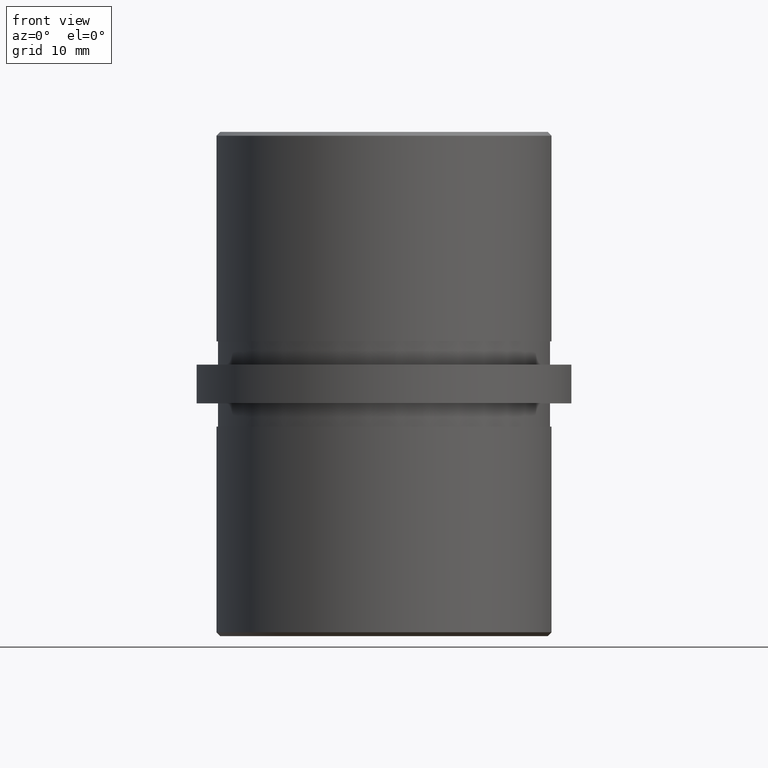
[diagram: clean part render]
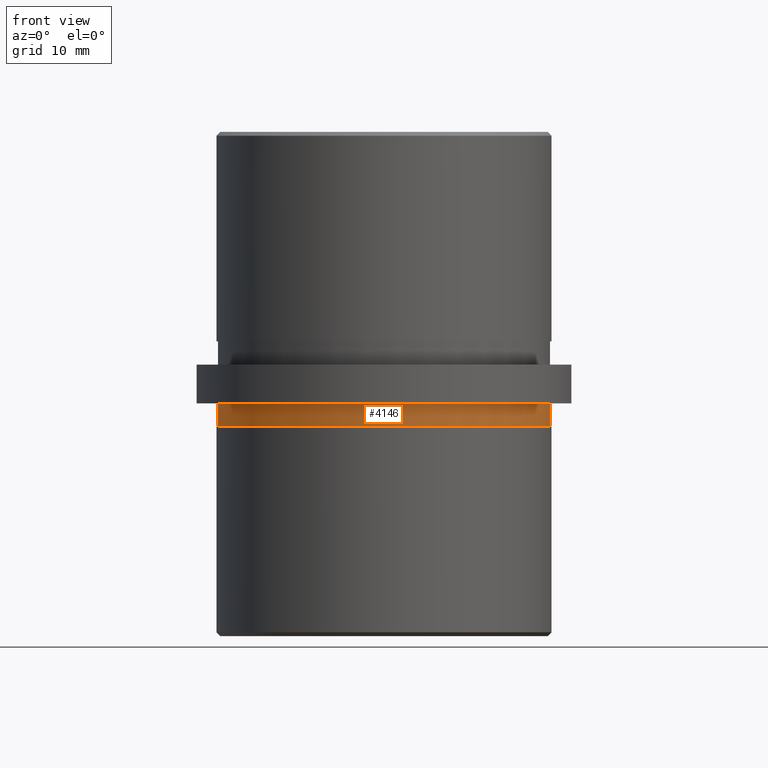
[diagram: same view with one face highlighted and labeled with its STEP entity id]
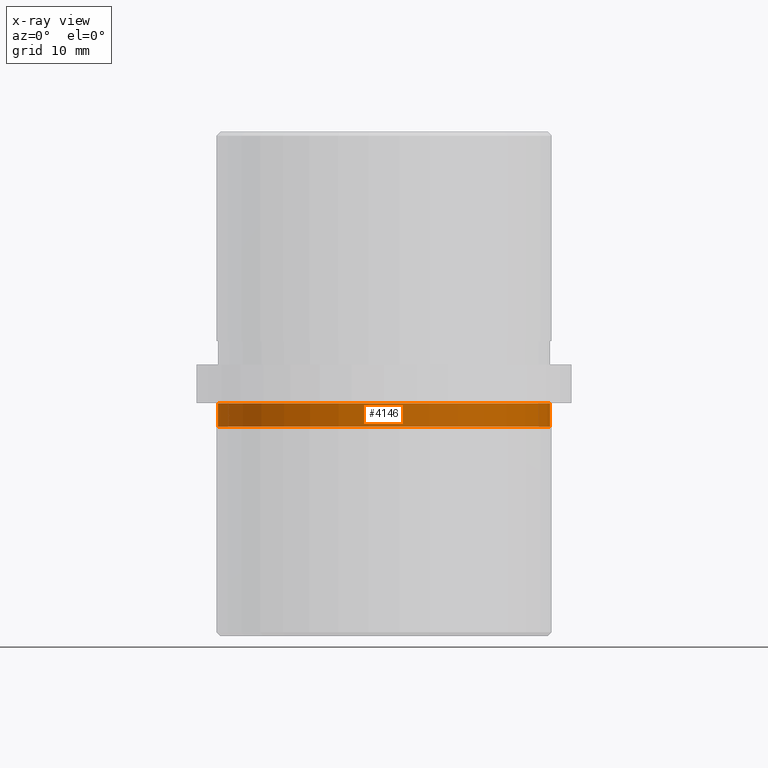
[diagram: x-ray of the same camera — body ghosted, the highlighted face saturated]
A machine part, front view. The second image highlights one B-rep face of the part: STEP entity #4146.
The next image is the same camera in x-ray: the body ghosted, the highlighted face saturated — about 0% of this face is hidden behind the body in this view.
In plain terms, the highlighted cylindrical surface (partial cylindrical patch) has radius 21.4 mm, axis along (-0, -0, 1).
Its self-contained STEP definition (entity closure, byte-faithful):
#1272 = CARTESIAN_POINT ( 'NONE',  ( -21.39999999999999900, 0.0000000000000000000, -2.500000000000000000 ) ) ;
#1986 = VECTOR ( 'NONE', #9991, 1000.000000000000000 ) ;
#4146 = ADVANCED_FACE ( 'NONE', ( #21408 ), #6946, .T. ) ;
#4187 = VERTEX_POINT ( 'NONE', #12260 ) ;
#4735 = DIRECTION ( 'NONE',  ( -1.000000000000000000, 0.0000000000000000000, 0.0000000000000000000 ) ) ;
#4746 = CIRCLE ( 'NONE', #12772, 21.39999999999999900 ) ;
#4890 = ORIENTED_EDGE ( 'NONE', *, *, #19182, .T. ) ;
#6946 = CYLINDRICAL_SURFACE ( 'NONE', #20859, 21.39999999999999900 ) ;
#7384 = LINE ( 'NONE', #10227, #1986 ) ;
#7561 = ORIENTED_EDGE ( 'NONE', *, *, #12848, .F. ) ;
#8728 = DIRECTION ( 'NONE',  ( -0.0000000000000000000, -0.0000000000000000000, 1.000000000000000000 ) ) ;
#9441 = ORIENTED_EDGE ( 'NONE', *, *, #17703, .F. ) ;
#9991 = DIRECTION ( 'NONE',  ( -0.0000000000000000000, -0.0000000000000000000, 1.000000000000000000 ) ) ;
#10227 = CARTESIAN_POINT ( 'NONE',  ( 21.39999999999999900, -2.620744150175335900E-015, -5.500000000000000000 ) ) ;
#10489 = VERTEX_POINT ( 'NONE', #1272 ) ;
#12021 = CARTESIAN_POINT ( 'NONE',  ( 0.0000000000000000000, 0.0000000000000000000, -5.500000000000000000 ) ) ;
#12260 = CARTESIAN_POINT ( 'NONE',  ( -21.39999999999999900, 0.0000000000000000000, -5.500000000000000000 ) ) ;
#12318 = CARTESIAN_POINT ( 'NONE',  ( -21.39999999999999900, 0.0000000000000000000, -5.500000000000000000 ) ) ;
#12772 = AXIS2_PLACEMENT_3D ( 'NONE', #13889, #17431, #22935 ) ;
#12848 = EDGE_CURVE ( 'NONE', #10489, #14807, #22139, .T. ) ;
#13247 = AXIS2_PLACEMENT_3D ( 'NONE', #17127, #18954, #15086 ) ;
#13889 = CARTESIAN_POINT ( 'NONE',  ( 0.0000000000000000000, 0.0000000000000000000, -5.500000000000000000 ) ) ;
#14807 = VERTEX_POINT ( 'NONE', #19686 ) ;
#15086 = DIRECTION ( 'NONE',  ( 1.000000000000000000, 0.0000000000000000000, 0.0000000000000000000 ) ) ;
#17127 = CARTESIAN_POINT ( 'NONE',  ( 0.0000000000000000000, 0.0000000000000000000, -2.500000000000000000 ) ) ;
#17431 = DIRECTION ( 'NONE',  ( -0.0000000000000000000, -0.0000000000000000000, 1.000000000000000000 ) ) ;
#17520 = ORIENTED_EDGE ( 'NONE', *, *, #20864, .T. ) ;
#17680 = VERTEX_POINT ( 'NONE', #21277 ) ;
#17703 = EDGE_CURVE ( 'NONE', #4187, #10489, #20174, .T. ) ;
#18954 = DIRECTION ( 'NONE',  ( -0.0000000000000000000, -0.0000000000000000000, 1.000000000000000000 ) ) ;
#19182 = EDGE_CURVE ( 'NONE', #17680, #14807, #7384, .T. ) ;
#19372 = DIRECTION ( 'NONE',  ( -0.0000000000000000000, -0.0000000000000000000, 1.000000000000000000 ) ) ;
#19686 = CARTESIAN_POINT ( 'NONE',  ( 21.39999999999999900, -2.620744150175335900E-015, -2.500000000000000000 ) ) ;
#20174 = LINE ( 'NONE', #12318, #21327 ) ;
#20859 = AXIS2_PLACEMENT_3D ( 'NONE', #12021, #8728, #4735 ) ;
#20864 = EDGE_CURVE ( 'NONE', #4187, #17680, #4746, .T. ) ;
#21277 = CARTESIAN_POINT ( 'NONE',  ( 21.39999999999999900, -2.620744150175335900E-015, -5.500000000000000000 ) ) ;
#21327 = VECTOR ( 'NONE', #19372, 1000.000000000000000 ) ;
#21408 = FACE_OUTER_BOUND ( 'NONE', #22164, .T. ) ;
#22139 = CIRCLE ( 'NONE', #13247, 21.39999999999999900 ) ;
#22164 = EDGE_LOOP ( 'NONE', ( #17520, #4890, #7561, #9441 ) ) ;
#22935 = DIRECTION ( 'NONE',  ( 1.000000000000000000, 0.0000000000000000000, 0.0000000000000000000 ) ) ;